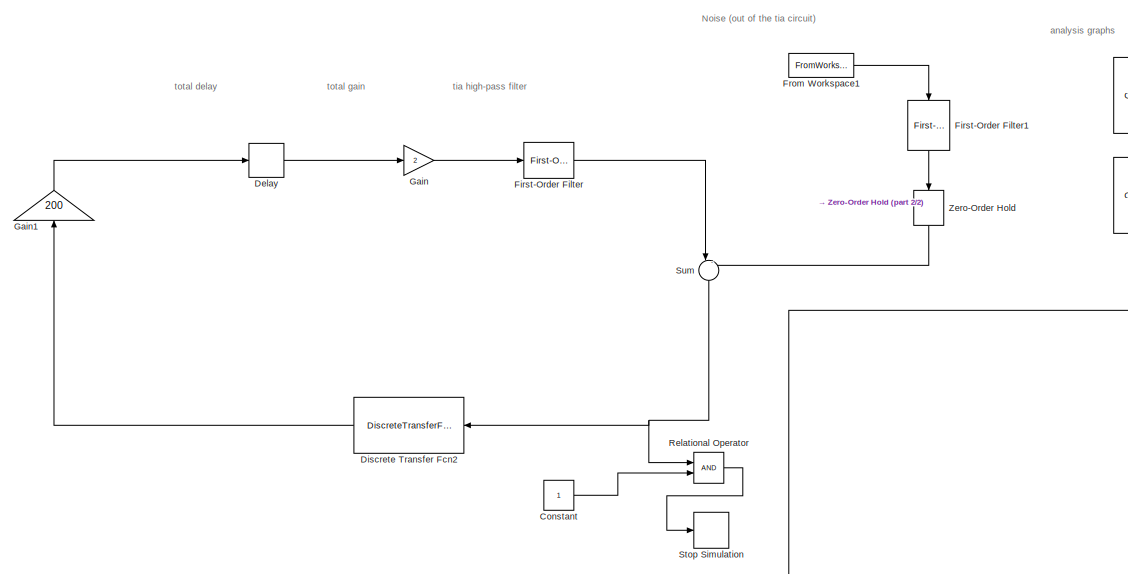
[diagram: root canvas - part 1/2, middle left region]
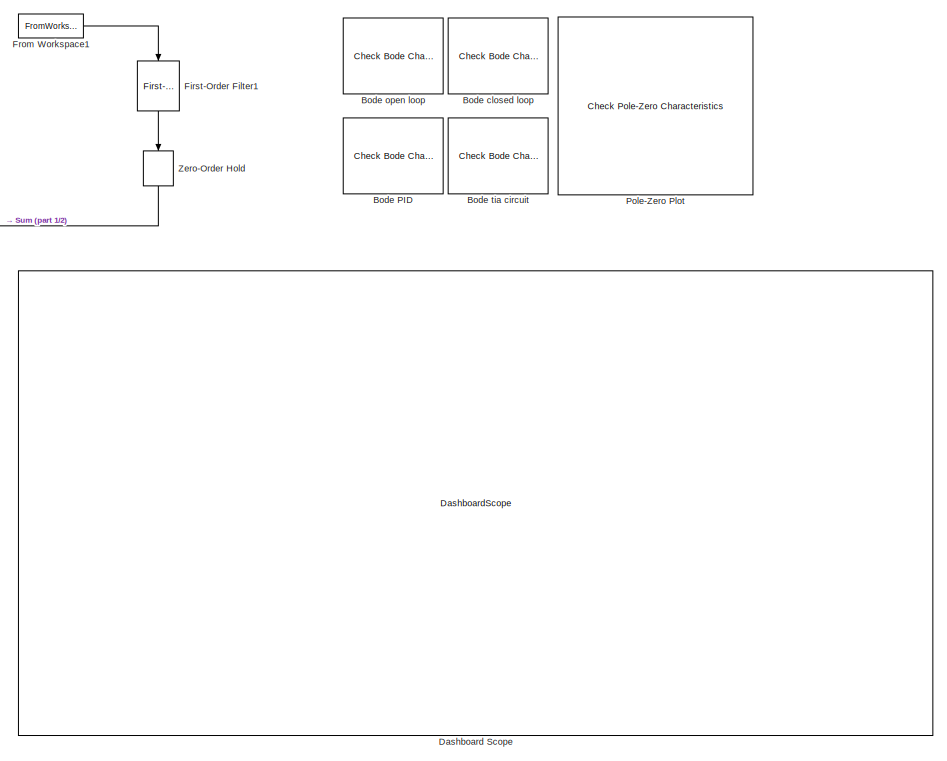
[diagram: root canvas - part 2/2, right side, full height]
MODEL slx_e60b792272cc
KIND model
CONFIG AbsTol = auto
CONFIG EnableMultiTasking = off
CONFIG FixedStep = auto
CONFIG MaxStep = auto
CONFIG MinStep = auto
CONFIG RelTol = 1e-3
CONFIG SampleTimeConstraint = Unconstrained
CONFIG SolverName = VariableStepAuto
CONFIG StartTime = 0.0
CONFIG StopTime = 20e-4
BLOCK [Reference] Bode PID  REF=slctrl_linear/Check Bode 
Characteristics
  Commented = on
  InstantiateOnLoad = on
  LibrarySourceBlock = slctrlblks/Linear Analysis Plots/Bode Plot
  SourceBlock = slctrl_linear/Check Bode \nCharacteristics
  SourceType = Checks_Bode
BLOCK [Reference] Bode closed loop  REF=slctrl_linear/Check Bode 
Characteristics
  Commented = on
  InstantiateOnLoad = on
  LibrarySourceBlock = slctrlblks/Linear Analysis Plots/Bode Plot
  SourceBlock = slctrl_linear/Check Bode \nCharacteristics
  SourceType = Checks_Bode
BLOCK [Reference] Bode open loop  REF=slctrl_linear/Check Bode 
Characteristics
  Commented = on
  InstantiateOnLoad = on
  LibrarySourceBlock = slctrlblks/Linear Analysis Plots/Bode Plot
  SourceBlock = slctrl_linear/Check Bode \nCharacteristics
  SourceType = Checks_Bode
BLOCK [Reference] Bode tia circuit  REF=slctrl_linear/Check Bode 
Characteristics
  Commented = on
  InstantiateOnLoad = on
  LibrarySourceBlock = slctrlblks/Linear Analysis Plots/Bode Plot
  SourceBlock = slctrl_linear/Check Bode \nCharacteristics
  SourceType = Checks_Bode
BLOCK [Constant] Constant
BLOCK [DashboardScope] Dashboard Scope
BLOCK [Delay] Delay
  DelayLength = 300
  InitialCondition = 0
  InputPortMap = u0
BLOCK [DiscreteTransferFcn] Discrete Transfer Fcn2
  Denominator = [1 -.99999]
  InputPortMap = u0
  Numerator = [.00001 0]
BLOCK [Reference] First-Order Filter  REF=spsFirstOrderFilterLib/First-Order
Filter
  LibrarySourceBlock = sps_lib/Control/Filters/First-Order\nFilter
  SourceBlock = spsFirstOrderFilterLib/First-Order\nFilter
  SourceType = First-Order Filter
BLOCK [Reference] First-Order Filter1  REF=spsFirstOrderFilterLib/First-Order
Filter
  LibrarySourceBlock = sps_lib/Control/Filters/First-Order\nFilter
  NameLocation = left
  SourceBlock = spsFirstOrderFilterLib/First-Order\nFilter
  SourceType = First-Order Filter
BLOCK [FromWorkspace] From Workspace1
  OutputAfterFinalValue = Setting to zero
  SampleTime = 1/fNoiseSampling
  VariableName = laserNoise_tia2
BLOCK [Gain] Gain
  Gain = 2
BLOCK [Gain] Gain1
  Gain = 200
  NameLocation = right
BLOCK [Reference] Pole-Zero Plot  REF=slctrl_linear/Check Pole-Zero
Characteristics
  Commented = on
  InstantiateOnLoad = on
  LibrarySourceBlock = slctrlblks/Linear Analysis Plots/Pole-Zero Plot
  SourceBlock = slctrl_linear/Check Pole-Zero\nCharacteristics
  SourceType = Checks_PZMap
BLOCK [RelationalOperator] Relational Operator
  InputSameDT = off
  OutDataTypeStr = boolean
  RndMeth = Simplest
BLOCK [Stop] Stop Simulation
BLOCK [Sum] Sum
  Inputs = |-+
  NameLocation = left
BLOCK [ZeroOrderHold] Zero-Order Hold
  NameLocation = right
  SampleTime = 1/fsampling
ANNOTATION (root): Noise (out of the tia circuit)
ANNOTATION (root): analysis graphs
ANNOTATION (root): tia high-pass filter
ANNOTATION (root): total delay
ANNOTATION (root): total gain
LINE Constant:1 -> Relational Operator:2
LINE Delay:1 -> Gain:1
LINE Discrete Transfer Fcn2:1 -> Gain1:1
LINE First-Order Filter1:1 -> Zero-Order Hold:1
LINE First-Order Filter:1 -> Sum:1
LINE From Workspace1:1 -> First-Order Filter1:1
LINE Gain1:1 -> Delay:1
LINE Gain:1 -> First-Order Filter:1
LINE Relational Operator:1 -> Stop Simulation:1
NET Sum:1 -> Discrete Transfer Fcn2:1, Relational Operator:1
LINE Zero-Order Hold:1 -> Sum:2
note: NET lines group one-source signal fan-out (src -> all destinations, sorted); 1:1 wires keep LINE
